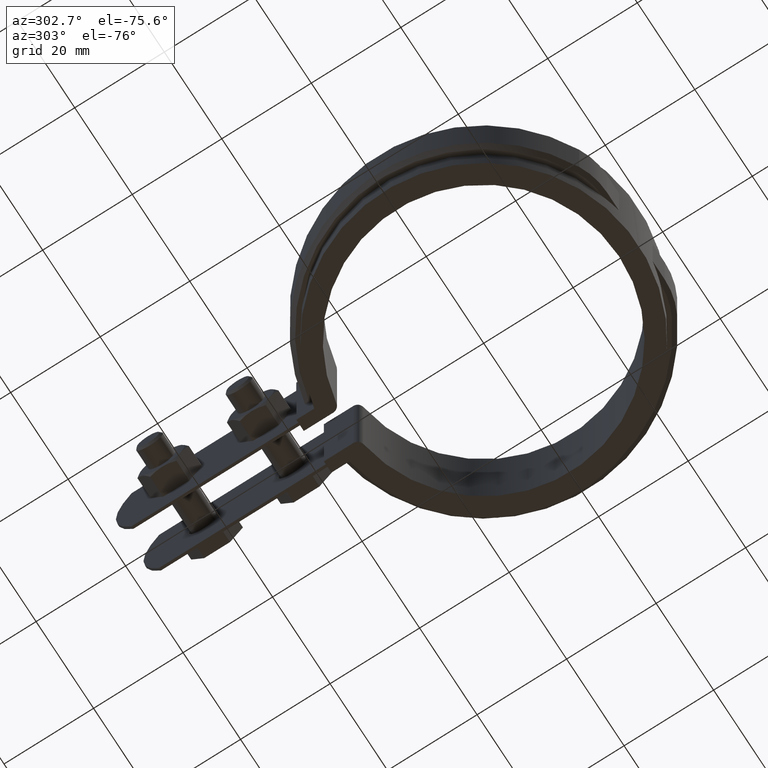
[diagram: clean part render]
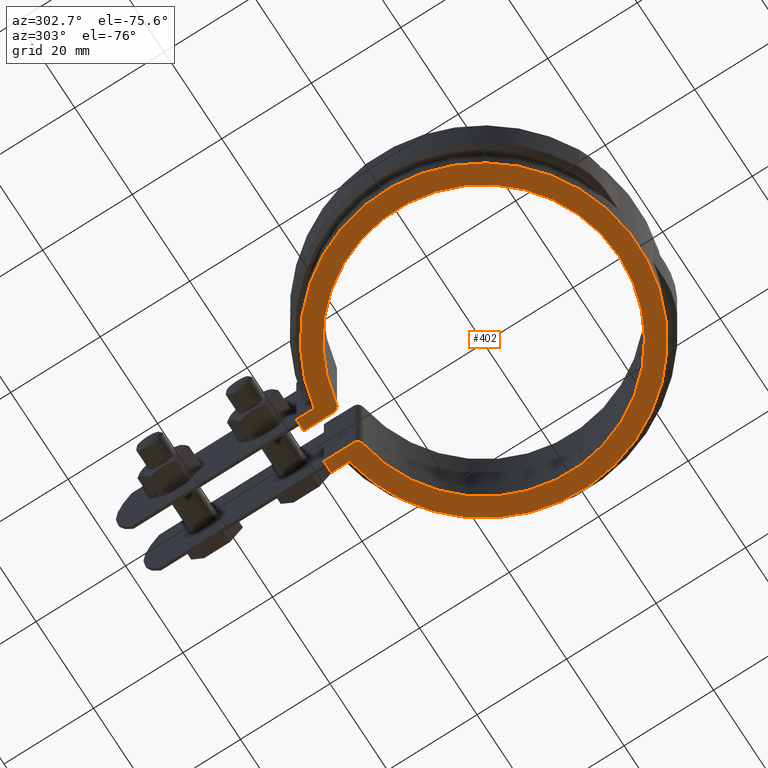
[diagram: same view with one face highlighted and labeled with its STEP entity id]
A machine part, auxiliary view. The second image highlights one B-rep face of the part: STEP entity #402.
In plain terms, the highlighted planar face has unit normal (0, 0, 1).
Its self-contained STEP definition (entity closure, byte-faithful):
#402 = ADVANCED_FACE( '', ( #711 ), #712, .F. );
#711 = FACE_OUTER_BOUND( '', #1411, .T. );
#712 = PLANE( '', #1412 );
#1411 = EDGE_LOOP( '', ( #3175, #3176, #3177, #3178, #3179, #3180, #3181, #3182, #3183, #3184 ) );
#1412 = AXIS2_PLACEMENT_3D( '', #3185, #3186, #3187 );
#3175 = ORIENTED_EDGE( '', *, *, #4576, .F. );
#3176 = ORIENTED_EDGE( '', *, *, #4728, .F. );
#3177 = ORIENTED_EDGE( '', *, *, #4729, .T. );
#3178 = ORIENTED_EDGE( '', *, *, #4730, .T. );
#3179 = ORIENTED_EDGE( '', *, *, #4731, .T. );
#3180 = ORIENTED_EDGE( '', *, *, #4732, .F. );
#3181 = ORIENTED_EDGE( '', *, *, #4688, .F. );
#3182 = ORIENTED_EDGE( '', *, *, #4666, .F. );
#3183 = ORIENTED_EDGE( '', *, *, #4703, .F. );
#3184 = ORIENTED_EDGE( '', *, *, #4678, .F. );
#3185 = CARTESIAN_POINT( '', ( 0.000000000000000, 0.000000000000000, -26.5000000000000 ) );
#3186 = DIRECTION( '', ( 0.000000000000000, 0.000000000000000, 1.00000000000000 ) );
#3187 = DIRECTION( '', ( -1.00000000000000, 6.07153216591882E-017, 0.000000000000000 ) );
#4576 = EDGE_CURVE( '', #5195, #5197, #5198, .T. );
#4666 = EDGE_CURVE( '', #5360, #5362, #5363, .T. );
#4678 = EDGE_CURVE( '', #5197, #5385, #5386, .T. );
#4688 = EDGE_CURVE( '', #5362, #5400, #5402, .T. );
#4703 = EDGE_CURVE( '', #5385, #5360, #5429, .T. );
#4728 = EDGE_CURVE( '', #5466, #5195, #5467, .T. );
#4729 = EDGE_CURVE( '', #5466, #5468, #5469, .T. );
#4730 = EDGE_CURVE( '', #5468, #5470, #5471, .F. );
#4731 = EDGE_CURVE( '', #5470, #5472, #5473, .T. );
#4732 = EDGE_CURVE( '', #5400, #5472, #5474, .T. );
#5195 = VERTEX_POINT( '', #7074 );
#5197 = VERTEX_POINT( '', #7077 );
#5198 = LINE( '', #7078, #7079 );
#5360 = VERTEX_POINT( '', #7743 );
#5362 = VERTEX_POINT( '', #7746 );
#5363 = LINE( '', #7747, #7748 );
#5385 = VERTEX_POINT( '', #7785 );
#5386 = LINE( '', #7786, #7787 );
#5400 = VERTEX_POINT( '', #7805 );
#5402 = LINE( '', #7808, #7809 );
#5429 = CIRCLE( '', #7842, 34.4950000000000 );
#5466 = VERTEX_POINT( '', #7891 );
#5467 = LINE( '', #7892, #7893 );
#5468 = VERTEX_POINT( '', #7894 );
#5469 = CIRCLE( '', #7895, 1.50000000000000 );
#5470 = VERTEX_POINT( '', #7896 );
#5471 = CIRCLE( '', #7897, 30.2500000000000 );
#5472 = VERTEX_POINT( '', #7898 );
#5473 = CIRCLE( '', #7899, 1.50000000000000 );
#5474 = LINE( '', #7900, #7901 );
#7074 = CARTESIAN_POINT( '', ( -3.49999999999999, 37.9500000000000, -26.5000000000000 ) );
#7077 = CARTESIAN_POINT( '', ( -6.10000000000000, 37.9500000000000, -26.5000000000000 ) );
#7078 = CARTESIAN_POINT( '', ( -5.09999999999999, 37.9500000000000, -26.5000000000000 ) );
#7079 = VECTOR( '', #9126, 1000.00000000000 );
#7743 = CARTESIAN_POINT( '', ( 6.09999999999998, 33.9513626383390, -26.5000000000000 ) );
#7746 = CARTESIAN_POINT( '', ( 6.10000000000001, 37.9500000000000, -26.5000000000000 ) );
#7747 = CARTESIAN_POINT( '', ( 6.10000000000001, 33.9513626383390, -26.5000000000000 ) );
#7748 = VECTOR( '', #9232, 1000.00000000000 );
#7785 = CARTESIAN_POINT( '', ( -6.10000000000000, 33.9513626383390, -26.5000000000000 ) );
#7786 = CARTESIAN_POINT( '', ( -6.10000000000000, 37.9500000000000, -26.5000000000000 ) );
#7787 = VECTOR( '', #9242, 1000.00000000000 );
#7805 = CARTESIAN_POINT( '', ( 3.50000000000001, 37.9500000000000, -26.5000000000000 ) );
#7808 = CARTESIAN_POINT( '', ( 6.09999999999999, 37.9500000000000, -26.5000000000000 ) );
#7809 = VECTOR( '', #9260, 1000.00000000000 );
#7842 = AXIS2_PLACEMENT_3D( '', #9291, #9292, #9293 );
#7891 = CARTESIAN_POINT( '', ( -3.49999999999999, 31.3538275175456, -26.5000000000000 ) );
#7892 = CARTESIAN_POINT( '', ( -3.49999999999999, 30.0418046228917, -26.5000000000000 ) );
#7893 = VECTOR( '', #9342, 1000.00000000000 );
#7894 = CARTESIAN_POINT( '', ( -4.76377952755905, 29.8725443277403, -26.5000000000000 ) );
#7895 = AXIS2_PLACEMENT_3D( '', #9343, #9344, #9345 );
#7896 = CARTESIAN_POINT( '', ( 4.76377952755906, 29.8725443277403, -26.5000000000000 ) );
#7897 = AXIS2_PLACEMENT_3D( '', #9346, #9347, #9348 );
#7898 = CARTESIAN_POINT( '', ( 3.50000000000000, 31.3538275175456, -26.5000000000000 ) );
#7899 = AXIS2_PLACEMENT_3D( '', #9349, #9350, #9351 );
#7900 = CARTESIAN_POINT( '', ( 3.50000000000000, 37.9500000000000, -26.5000000000000 ) );
#7901 = VECTOR( '', #9352, 1000.00000000000 );
#9126 = DIRECTION( '', ( -1.00000000000000, -1.23259516440783E-032, 0.000000000000000 ) );
#9232 = DIRECTION( '', ( 6.07153216591882E-017, 1.00000000000000, 0.000000000000000 ) );
#9242 = DIRECTION( '', ( -6.07153216591882E-017, -1.00000000000000, 0.000000000000000 ) );
#9260 = DIRECTION( '', ( -1.00000000000000, -1.23259516440783E-032, 0.000000000000000 ) );
#9291 = CARTESIAN_POINT( '', ( 0.000000000000000, 0.000000000000000, -26.5000000000000 ) );
#9292 = DIRECTION( '', ( 0.000000000000000, 0.000000000000000, 1.00000000000000 ) );
#9293 = DIRECTION( '', ( 1.00000000000000, -6.07153216591883E-017, 0.000000000000000 ) );
#9342 = DIRECTION( '', ( 6.07153216591882E-017, 1.00000000000000, 0.000000000000000 ) );
#9343 = CARTESIAN_POINT( '', ( -4.99999999999999, 31.3538275175456, -26.5000000000000 ) );
#9344 = DIRECTION( '', ( 0.000000000000000, 0.000000000000000, -1.00000000000000 ) );
#9345 = DIRECTION( '', ( -1.00000000000000, 0.000000000000000, 0.000000000000000 ) );
#9346 = CARTESIAN_POINT( '', ( 0.000000000000000, 0.000000000000000, -26.5000000000000 ) );
#9347 = DIRECTION( '', ( 0.000000000000000, 0.000000000000000, -1.00000000000000 ) );
#9348 = DIRECTION( '', ( -1.00000000000000, 0.000000000000000, 0.000000000000000 ) );
#9349 = CARTESIAN_POINT( '', ( 5.00000000000000, 31.3538275175456, -26.5000000000000 ) );
#9350 = DIRECTION( '', ( 0.000000000000000, 0.000000000000000, -1.00000000000000 ) );
#9351 = DIRECTION( '', ( -1.00000000000000, 0.000000000000000, 0.000000000000000 ) );
#9352 = DIRECTION( '', ( -6.07153216591882E-017, -1.00000000000000, 0.000000000000000 ) );